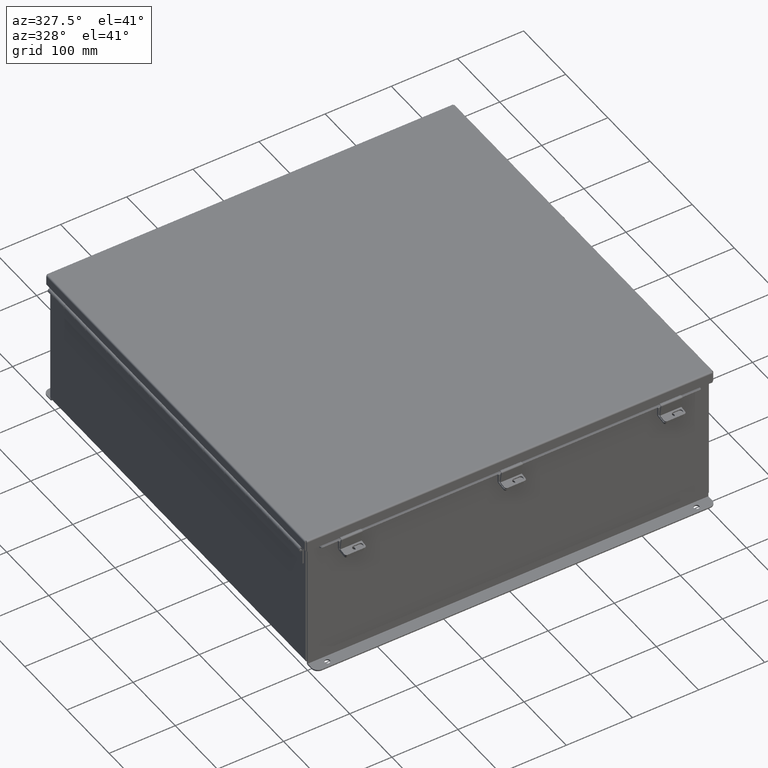
[diagram: clean part render]
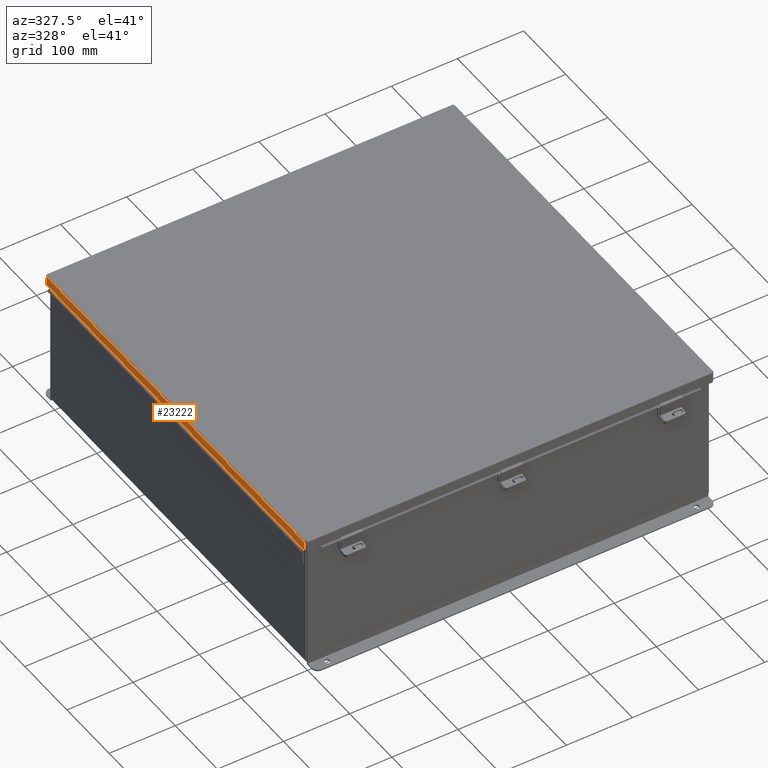
[diagram: same view with one face highlighted and labeled with its STEP entity id]
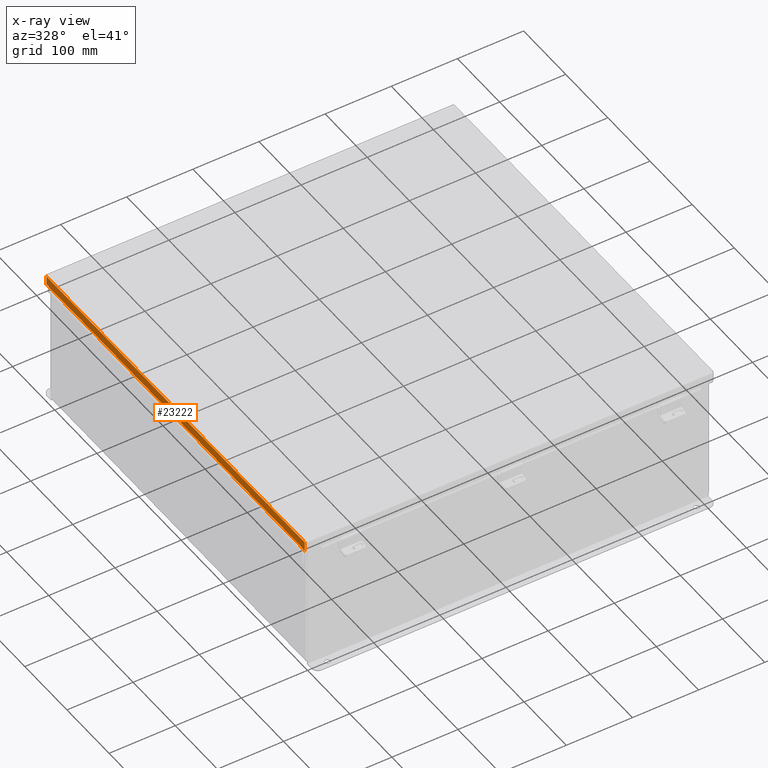
[diagram: x-ray of the same camera — body ghosted, the highlighted face saturated]
A machine part, auxiliary view. The second image highlights one B-rep face of the part: STEP entity #23222.
The next image is the same camera in x-ray: the body ghosted, the highlighted face saturated — about 0% of this face is hidden behind the body in this view.
In plain terms, the highlighted planar face has unit normal (1, -0, 0).
Its self-contained STEP definition (entity closure, byte-faithful):
#418 = ORIENTED_EDGE ( 'NONE', *, *, #17115, .T. ) ;
#940 = DIRECTION ( 'NONE',  ( -3.166671605124525800E-030, -1.000000000000000000, -1.853823127269377700E-029 ) ) ;
#1184 = CARTESIAN_POINT ( 'NONE',  ( 12.15625000000004100, 0.0000000000000000000, 0.5502999999999999000 ) ) ;
#1240 = EDGE_CURVE ( 'NONE', #17108, #3118, #6399, .T. ) ;
#1614 = ORIENTED_EDGE ( 'NONE', *, *, #1240, .F. ) ;
#3118 = VERTEX_POINT ( 'NONE', #15300 ) ;
#4320 = DIRECTION ( 'NONE',  ( -3.166671605124525800E-030, -1.000000000000000000, -1.853823127269377700E-029 ) ) ;
#4392 = CARTESIAN_POINT ( 'NONE',  ( 12.15625000000003900, -12.15625000000000000, 0.01299999999999901400 ) ) ;
#4698 = LINE ( 'NONE', #6250, #4795 ) ;
#4795 = VECTOR ( 'NONE', #5444, 39.37007874015748100 ) ;
#5032 = VERTEX_POINT ( 'NONE', #11148 ) ;
#5444 = DIRECTION ( 'NONE',  ( 3.971430846686186800E-015, 1.846427556282924300E-029, 1.000000000000000000 ) ) ;
#5590 = VECTOR ( 'NONE', #940, 39.37007874015748100 ) ;
#6109 = LINE ( 'NONE', #1184, #5590 ) ;
#6250 = CARTESIAN_POINT ( 'NONE',  ( 12.15625000000003900, -12.07447893218813200, -1.092739197465705300E-015 ) ) ;
#6399 = LINE ( 'NONE', #4392, #8978 ) ;
#6846 = CARTESIAN_POINT ( 'NONE',  ( 12.15625000000003900, 12.07447893218813200, 0.01300000000000010700 ) ) ;
#8193 = CARTESIAN_POINT ( 'NONE',  ( 12.15625000000003900, -12.07447893218813200, 0.5502999999999999000 ) ) ;
#8978 = VECTOR ( 'NONE', #4320, 39.37007874015748100 ) ;
#11148 = CARTESIAN_POINT ( 'NONE',  ( 12.15625000000003900, 12.07447893218813200, 0.5502999999999999000 ) ) ;
#13175 = CARTESIAN_POINT ( 'NONE',  ( 12.15625000000003900, 12.07447893218813200, -4.917326388595673900E-014 ) ) ;
#13336 = DIRECTION ( 'NONE',  ( 3.971430846686186800E-015, 1.846427556282924300E-029, 1.000000000000000000 ) ) ;
#13814 = EDGE_CURVE ( 'NONE', #3118, #16742, #4698, .T. ) ;
#15300 = CARTESIAN_POINT ( 'NONE',  ( 12.15625000000003900, -12.07447893218813200, 0.01299999999999901400 ) ) ;
#15381 = VECTOR ( 'NONE', #13336, 39.37007874015748100 ) ;
#15429 = LINE ( 'NONE', #13175, #15381 ) ;
#16742 = VERTEX_POINT ( 'NONE', #8193 ) ;
#17108 = VERTEX_POINT ( 'NONE', #6846 ) ;
#17115 = EDGE_CURVE ( 'NONE', #5032, #16742, #6109, .T. ) ;
#17525 = AXIS2_PLACEMENT_3D ( 'NONE', #19624, #19482, #19451 ) ;
#17965 = FACE_OUTER_BOUND ( 'NONE', #19644, .T. ) ;
#19451 = DIRECTION ( 'NONE',  ( 3.971430846686186800E-015, 1.846427556282924000E-029, 1.000000000000000000 ) ) ;
#19482 = DIRECTION ( 'NONE',  ( -1.000000000000000000, -3.214874041279299500E-030, 3.971430846686186800E-015 ) ) ;
#19516 = PLANE ( 'NONE',  #17525 ) ;
#19624 = CARTESIAN_POINT ( 'NONE',  ( 12.15625000000003700, 0.0000000000000000000, -4.808052468849102900E-014 ) ) ;
#19644 = EDGE_LOOP ( 'NONE', ( #1614, #24749, #418, #23253 ) ) ;
#23222 = ADVANCED_FACE ( 'NONE', ( #17965 ), #19516, .F. ) ;
#23253 = ORIENTED_EDGE ( 'NONE', *, *, #13814, .F. ) ;
#23868 = EDGE_CURVE ( 'NONE', #17108, #5032, #15429, .T. ) ;
#24749 = ORIENTED_EDGE ( 'NONE', *, *, #23868, .T. ) ;